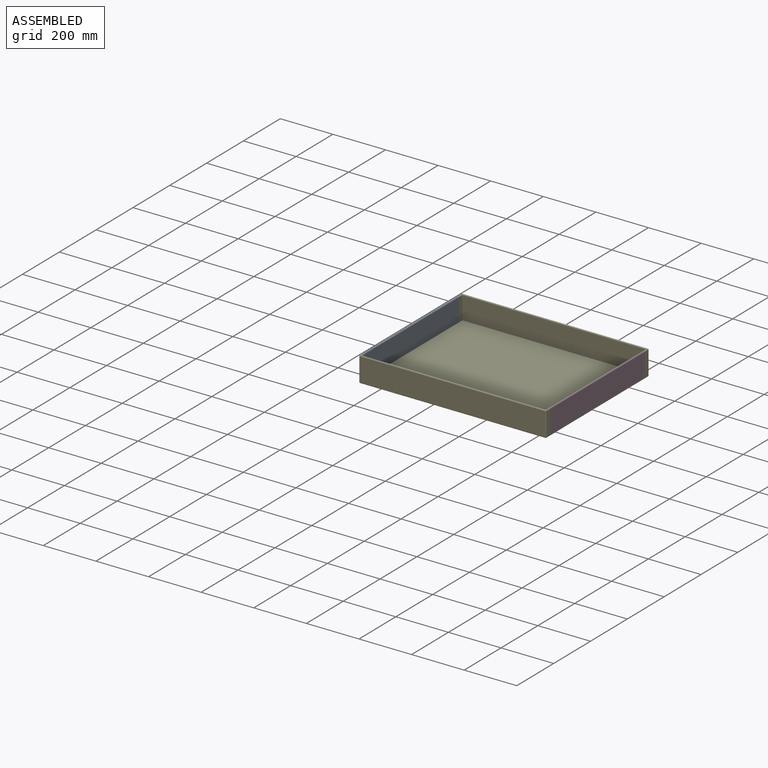
[diagram: assembled view]
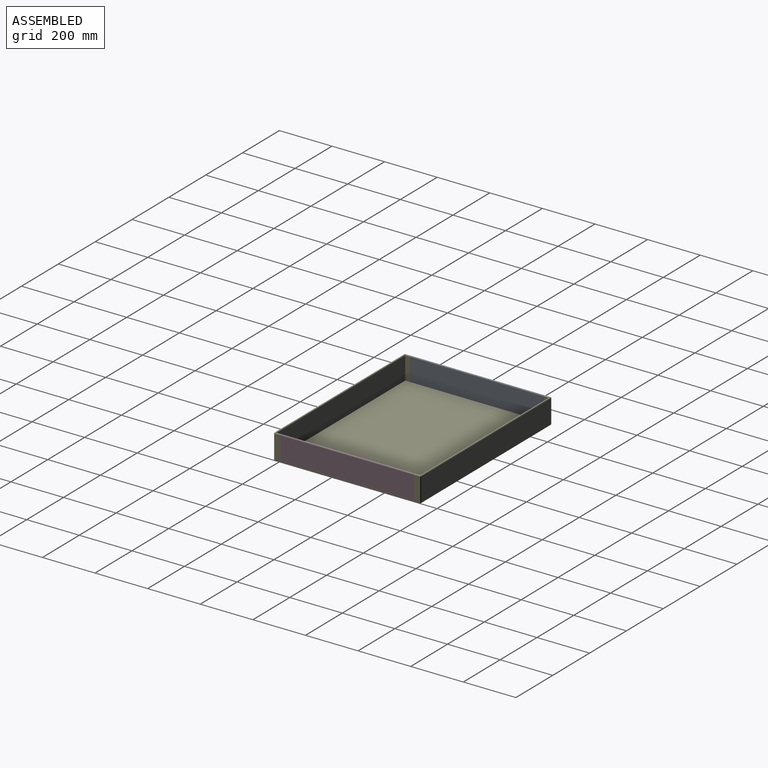
[diagram: assembled view, second angle]
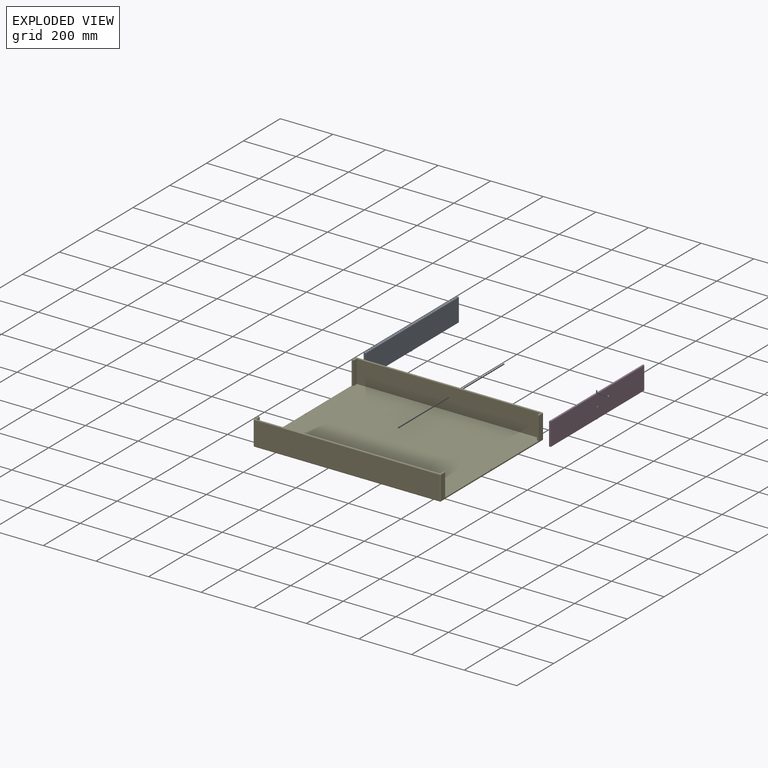
[diagram: exploded view]
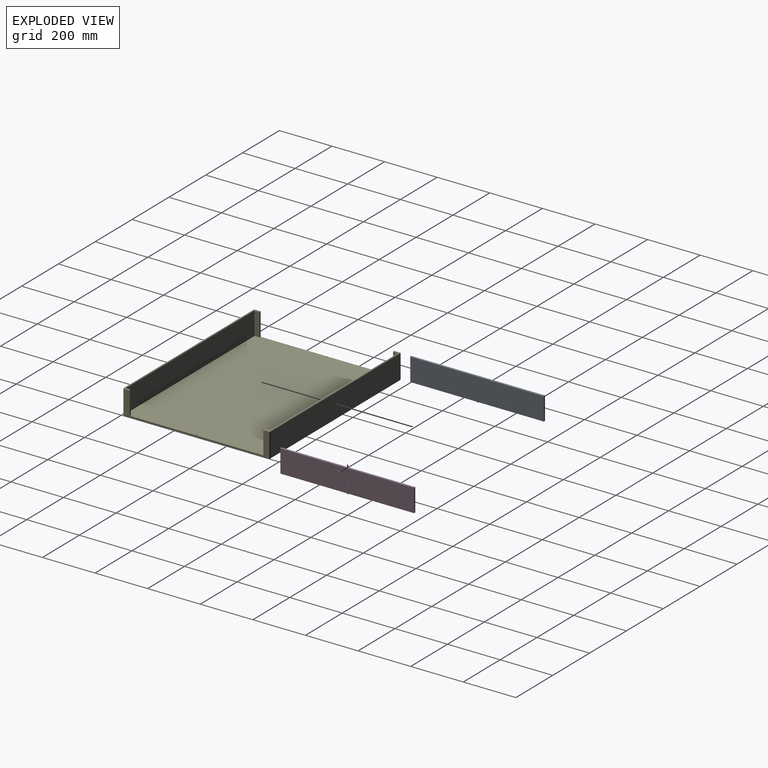
[diagram: exploded view, second angle]
ASSEMBLY  parts=5 mates=8
PART A: 13 faces, bbox 508x6.4x91.4 mm
  f0: plane 508x85.73mm, normal (0,1,0), area 43548.3mm2, adj f1,f3,f4,f10
  f1: plane 88.9x6.35mm, normal (-1,0,0), area 560.2mm2, adj f0,f2,f4,f10
  f2: plane 508x85.73mm, normal (0,-1,0), area 43516.6mm2, adj f1,f3,f4,f10,f11
  f3: plane 88.9x6.35mm, normal (1,0,0), area 560.2mm2, adj f0,f2,f4,f10
  f4: plane 508x6.35mm, normal (0,0,-1), area 3206.4mm2, adj f0,f1,f2,f3,f5,f6,f7,f8
  f5: plane 5.08x2.54mm, normal (0,-1,0), area 12.9mm2, adj f4,f6,f8,f9
  f6: plane 3.81x2.54mm, normal (-1,0,0), area 9.7mm2, adj f4,f5,f7,f9
  f7: plane 5.08x2.54mm, normal (0,1,0), area 12.9mm2, adj f4,f6,f8,f9
  f8: plane 3.81x2.54mm, normal (1,0,0), area 9.7mm2, adj f4,f5,f7,f9
  f9: plane 5.08x3.81mm, normal (0,0,-1), area 19.4mm2, adj f5,f6,f7,f8
  f10: cylinder r=3.17mm len=508mm, axis (1,0,0), area 5067.1mm2, adj f0,f1,f2,f3
  f11: cylinder r=3.17mm len=6.35mm, axis (0,-1,0), area 101.3mm2, adj f2,f12
  f12: plane 6.35x6.35mm, normal (0,-1,0), area 31.7mm2, adj f11
PART B: 3 faces, bbox 6.4x5.1x6.4 mm
  f0: cylinder r=3.17mm len=6.35mm, axis (0,1,0), area 101.3mm2, adj f1,f2
  f1: plane 6.35x6.35mm, normal (0,-1,0), area 31.7mm2, adj f0
  f2: plane 6.35x6.35mm, normal (0,1,0), area 31.7mm2, adj f0
PART C: same geometry as B
PART D: same geometry as A
PART E: 48 faces, bbox 558.8x711.2x95.3 mm
  f0: plane 711.2x546.1mm, normal (0,0,1), area 387863.7mm2, adj f1,f2,f3,f5,f8,f9,f10,f11
  f1: plane 552.45x88.9mm, normal (0,1,0), area 5564.5mm2, adj f0,f14,f15,f17,f23,f28,f35,f36
  f2: plane 85.73x19.05mm, normal (0,-1,0), area 1633.1mm2, adj f0,f10,f14,f17
  f3: plane 85.73x19.05mm, normal (0,1,0), area 1633.1mm2, adj f0,f10,f12,f16
  f4: plane 704.85x88.9mm, normal (-1,0,0), area 62661.2mm2, adj f18,f20,f23,f24
  f5: plane 552.45x88.9mm, normal (0,-1,0), area 5564.5mm2, adj f0,f12,f13,f16,f20,f25,f30,f31
  f6: plane 704.85x88.9mm, normal (1,0,0), area 62661.2mm2, adj f29,f30,f34,f35
  f7: plane 704.85x552.45mm, normal (0,0,-1), area 389394.4mm2, adj f24,f25,f28,f29
  f8: plane 698.5x85.73mm, normal (-1,0,0), area 59878.9mm2, adj f0,f9,f11,f34
  f9: plane 85.73x19.05mm, normal (0,-1,0), area 1633.1mm2, adj f0,f8,f15,f36
  f10: plane 698.5x85.73mm, normal (1,0,0), area 59878.9mm2, adj f0,f2,f3,f18
  f11: plane 85.73x19.05mm, normal (0,1,0), area 1633.1mm2, adj f0,f8,f13,f31
  f12: plane 88.9x6.35mm, normal (1,0,0), area 560.2mm2, adj f0,f3,f5,f16
  f13: plane 88.9x6.35mm, normal (-1,0,0), area 560.2mm2, adj f0,f5,f11,f31
  f14: plane 88.9x6.35mm, normal (1,0,0), area 560.2mm2, adj f0,f1,f2,f17
  f15: plane 88.9x6.35mm, normal (-1,0,0), area 560.2mm2, adj f0,f1,f9,f36
  f16: cylinder r=3.17mm len=22.23mm, axis (-1,0,0), area 211.6mm2, adj f3,f5,f12,f18,f19
  f17: cylinder r=3.17mm len=22.23mm, axis (1,0,0), area 211.6mm2, adj f1,f2,f14,f18,f21
  f18: cylinder r=3.17mm len=704.85mm, axis (0,1,0), area 7010.4mm2, adj f4,f10,f16,f17,f19,f21
  f19: sphere r=3.17mm, area 15.8mm2, adj f16,f18,f20
  f20: cylinder r=3.17mm len=88.9mm, axis (0,0,-1), area 443.4mm2, adj f4,f5,f19,f22
  f21: sphere r=3.17mm, area 15.8mm2, adj f17,f18,f23
  f22: sphere r=3.17mm, area 15.8mm2, adj f20,f24,f25
  f23: cylinder r=3.17mm len=88.9mm, axis (0,0,1), area 443.4mm2, adj f1,f4,f21,f26
  f24: cylinder r=3.17mm len=704.85mm, axis (0,-1,0), area 3515.3mm2, adj f4,f7,f22,f26
  f25: cylinder r=3.17mm len=552.45mm, axis (1,0,0), area 2755.2mm2, adj f5,f7,f22,f27
  f26: sphere r=3.17mm, area 15.8mm2, adj f23,f24,f28
  f27: sphere r=3.17mm, area 15.8mm2, adj f25,f29,f30
  f28: cylinder r=3.17mm len=552.45mm, axis (-1,0,0), area 2755.2mm2, adj f1,f7,f26,f32
  f29: cylinder r=3.17mm len=704.85mm, axis (0,1,0), area 3515.3mm2, adj f6,f7,f27,f32
  f30: cylinder r=3.17mm len=88.9mm, axis (0,0,1), area 443.4mm2, adj f5,f6,f27,f33
  f31: cylinder r=3.17mm len=22.23mm, axis (-1,0,0), area 211.6mm2, adj f5,f11,f13,f33,f34
  f32: sphere r=3.17mm, area 15.8mm2, adj f28,f29,f35
  f33: sphere r=3.17mm, area 15.8mm2, adj f30,f31,f34
  f34: cylinder r=3.17mm len=704.85mm, axis (0,-1,0), area 7010.4mm2, adj f6,f8,f31,f33,f36,f37
  f35: cylinder r=3.17mm len=88.9mm, axis (0,0,-1), area 443.4mm2, adj f1,f6,f32,f37
  f36: cylinder r=3.17mm len=22.23mm, axis (1,0,0), area 211.6mm2, adj f1,f9,f15,f34,f37
  f37: sphere r=3.17mm, area 15.8mm2, adj f34,f35,f36
  f38: plane 5.08x2.54mm, normal (0,-1,0), area 12.9mm2, adj f0,f39,f41,f42
  f39: plane 3.81x2.54mm, normal (1,0,0), area 9.7mm2, adj f0,f38,f40,f42
  f40: plane 5.08x2.54mm, normal (0,1,0), area 12.9mm2, adj f0,f39,f41,f42
  f41: plane 3.81x2.54mm, normal (-1,0,0), area 9.7mm2, adj f0,f38,f40,f42
  f42: plane 5.08x3.81mm, normal (0,0,1), area 19.4mm2, adj f38,f39,f40,f41
  f43: plane 5.08x2.54mm, normal (0,-1,0), area 12.9mm2, adj f0,f44,f46,f47
  f44: plane 3.81x2.54mm, normal (1,0,0), area 9.7mm2, adj f0,f43,f45,f47
  f45: plane 5.08x2.54mm, normal (0,1,0), area 12.9mm2, adj f0,f44,f46,f47
  f46: plane 3.81x2.54mm, normal (-1,0,0), area 9.7mm2, adj f0,f43,f45,f47
  f47: plane 5.08x3.81mm, normal (0,0,1), area 19.4mm2, adj f43,f44,f45,f46
PLACE A rot(axis=(0,0,-1),90deg) t=(-516.51,-66.99,252.54)mm
PLACE B rot(axis=(-0.71,0.71,0),180deg) t=(-613.7,-73.12,295.4)mm
PLACE C rot(axis=(-0.71,0.71,0),180deg) t=(92.42,-73.12,295.4)mm
PLACE D rot(axis=(0,0,1),90deg) t=(0.3,-79.26,252.54)mm
PLACE E rot(axis=(0,0,-1),90deg) t=(-613.7,-171.85,246.19)mm
MATE planar E.f12 <-> A.f1  axis (0,-1,0) through (-610.53,180.88,296.65)mm
MATE slider B.f0 <-> A.f11  axis (-1,0,0) through (-613.7,-73.12,295.4)mm
MATE planar A.f11 <-> B.f0  axis (-1,0,0) through (-613.7,-73.12,295.4)mm
MATE slider C.f0 <-> D.f11  axis (1,0,0) through (97.5,-73.12,295.4)mm
MATE pin_slot A.f9 <-> E.f42  axis (0,0,-1) through (-610.53,-73.12,250)mm
MATE pin_slot D.f9 <-> E.f47  axis (0,0,-1) through (94.32,-73.12,250)mm
MATE planar C.f0 <-> D.f11  axis (1,0,0) through (97.5,-73.12,295.4)mm
MATE planar E.f15 <-> D.f1  axis (0,1,0) through (94.32,-327.12,296.65)mm
